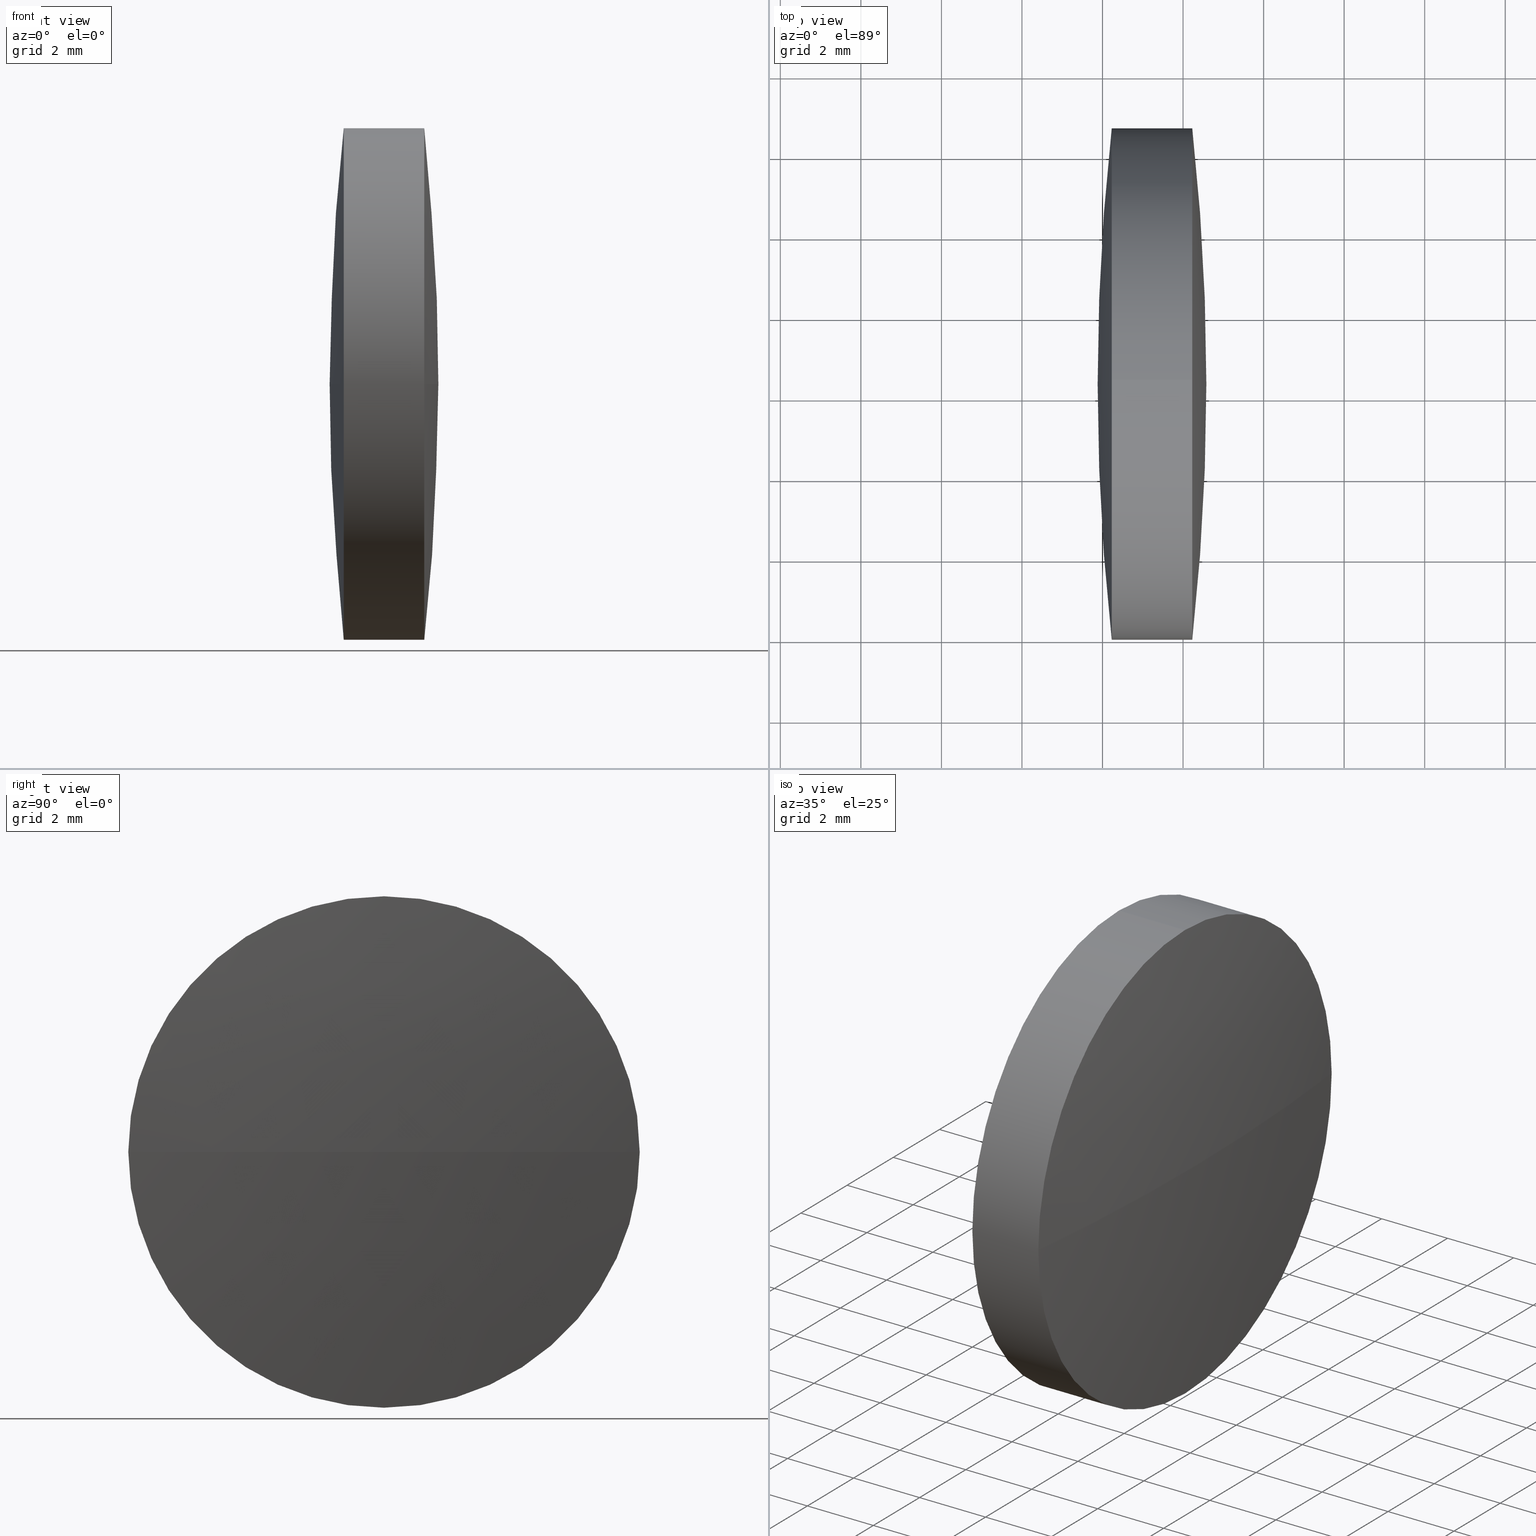
[diagram: canonical four-view strip — front | top / right | iso, engineering-drawing reading convention]
A machine part, canonical four-view strip (front | top / right | iso — engineering-drawing reading convention). The complete STEP part file that produces these views, byte-faithful:
ISO-10303-21;
HEADER;
FILE_DESCRIPTION (( 'STEP AP203' ),
    '1' );
FILE_NAME ('110153.STEP',
    '2019-07-09T01:35:42',
    ( '' ),
    ( '' ),
    'SwSTEP 2.0',
    'SolidWorks 2016',
    '' );
FILE_SCHEMA (( 'CONFIG_CONTROL_DESIGN' ));
ENDSEC;

DATA;
#1 = EDGE_CURVE ( 'NONE', #294, #84, #189, .T. ) ;
#2 = ORIENTED_EDGE ( 'NONE', *, *, #209, .F. ) ;
#3 = AXIS2_PLACEMENT_3D ( 'NONE', #95, #281, #283 ) ;
#4 = VERTEX_POINT ( 'NONE', #194 ) ;
#5 = APPLICATION_PROTOCOL_DEFINITION ( 'international standard', 'config_control_design', 1994, #273 ) ;
#6 = PERSON_AND_ORGANIZATION_ROLE ( 'design_owner' ) ;
#7 = APPROVAL_STATUS ( 'not_yet_approved' ) ;
#8 = APPROVAL_STATUS ( 'not_yet_approved' ) ;
#9 = DIRECTION ( 'NONE',  ( -1.000000000000000000, -0.0000000000000000000, -0.0000000000000000000 ) ) ;
#10 = ORIENTED_EDGE ( 'NONE', *, *, #180, .T. ) ;
#11 = CARTESIAN_POINT ( 'NONE',  ( 42.22906260161698100, 24.30805651159239000, 0.0000000000000000000 ) ) ;
#12 = CARTESIAN_POINT ( 'NONE',  ( 41.87926831590270600, 24.30805651159235800, 0.0000000000000000000 ) ) ;
#13 = SPHERICAL_SURFACE ( 'NONE', #200, 57.81234527563819400 ) ;
#14 = DIRECTION ( 'NONE',  ( -1.000000000000000000, -0.0000000000000000000, -0.0000000000000000000 ) ) ;
#15 = DIRECTION ( 'NONE',  ( -1.000000000000000000, -0.0000000000000000000, -0.0000000000000000000 ) ) ;
#16 = PERSON_AND_ORGANIZATION ( #231, #172 ) ;
#17 = DIRECTION ( 'NONE',  ( 0.0000000000000000000, 0.0000000000000000000, 1.000000000000000000 ) ) ;
#18 = PRODUCT_DEFINITION_FORMATION_WITH_SPECIFIED_SOURCE ( '�κ�', '', #67, .NOT_KNOWN. ) ;
#19 = APPLICATION_CONTEXT ( 'configuration controlled 3d designs of mechanical parts and assemblies' ) ;
#20 = DIRECTION ( 'NONE',  ( 0.0000000000000000000, -1.000000000000000000, -1.224646799147353200E-016 ) ) ;
#21 = EDGE_LOOP ( 'NONE', ( #318, #22, #279, #130 ) ) ;
#22 = ORIENTED_EDGE ( 'NONE', *, *, #209, .T. ) ;
#23 = DESIGN_CONTEXT ( 'detailed design', #273, 'design' ) ;
#24 = CIRCLE ( 'NONE', #277, 6.349999999999997900 ) ;
#25 = CARTESIAN_POINT ( 'NONE',  ( 99.69161359154090000, 24.30805651159235500, 0.0000000000000000000 ) ) ;
#26 = PERSON_AND_ORGANIZATION ( #231, #172 ) ;
#27 = AXIS2_PLACEMENT_3D ( 'NONE', #150, #92, #128 ) ;
#28 = APPROVAL_PERSON_ORGANIZATION ( #97, #292, #204 ) ;
#29 = ORIENTED_EDGE ( 'NONE', *, *, #117, .T. ) ;
#30 = CIRCLE ( 'NONE', #317, 6.349999999999997900 ) ;
#31 = LOCAL_TIME ( 9, 35, 42.00000000000000000, #320 ) ;
#32 = SHAPE_DEFINITION_REPRESENTATION ( #157, #212 ) ;
#33 = PERSON_AND_ORGANIZATION ( #231, #172 ) ;
#34 = APPROVAL ( #82, 'δָ��' ) ;
#35 = PERSON_AND_ORGANIZATION ( #231, #172 ) ;
#36 = PERSON_AND_ORGANIZATION_ROLE ( 'creator' ) ;
#37 = DATE_AND_TIME ( #190, #327 ) ;
#38 = ADVANCED_FACE ( 'NONE', ( #242 ), #89, .T. ) ;
#39 = DIRECTION ( 'NONE',  ( -1.000000000000000000, -0.0000000000000000000, -0.0000000000000000000 ) ) ;
#40 = CARTESIAN_POINT ( 'NONE',  ( 44.22913117304555200, 17.95805651159243500, 0.0000000000000000000 ) ) ;
#41 = CIRCLE ( 'NONE', #262, 57.81234527563818700 ) ;
#42 = CARTESIAN_POINT ( 'NONE',  ( 42.22906260161698100, 24.30805651159239000, 0.0000000000000000000 ) ) ;
#43 = LOCAL_TIME ( 9, 35, 42.00000000000000000, #315 ) ;
#44 = DATE_AND_TIME ( #244, #168 ) ;
#45 = CALENDAR_DATE ( 2019, 9, 7 ) ;
#46 = CARTESIAN_POINT ( 'NONE',  ( -13.23341981687683600, 24.30805651159243300, 0.0000000000000000000 ) ) ;
#47 = APPROVAL_DATE_TIME ( #75, #292 ) ;
#48 = SECURITY_CLASSIFICATION ( '', '', #61 ) ;
#49 = CALENDAR_DATE ( 2019, 9, 7 ) ;
#50 = VERTEX_POINT ( 'NONE', #321 ) ;
#51 = COORDINATED_UNIVERSAL_TIME_OFFSET ( 8, 0, .AHEAD. ) ;
#52 = COORDINATED_UNIVERSAL_TIME_OFFSET ( 8, 0, .AHEAD. ) ;
#53 = APPROVAL_DATE_TIME ( #246, #34 ) ;
#54 = SECURITY_CLASSIFICATION ( '', '', #139 ) ;
#55 = PRODUCT_RELATED_PRODUCT_CATEGORY ( 'detail', '', ( #67 ) ) ;
#56 = ORIENTED_EDGE ( 'NONE', *, *, #247, .T. ) ;
#57 = CC_DESIGN_DATE_AND_TIME_ASSIGNMENT ( #111, #144, ( #48 ) ) ;
#58 = AXIS2_PLACEMENT_3D ( 'NONE', #25, #132, #159 ) ;
#59 = PERSON_AND_ORGANIZATION_ROLE ( 'creator' ) ;
#60 = ADVANCED_FACE ( 'NONE', ( #307 ), #319, .T. ) ;
#61 = SECURITY_CLASSIFICATION_LEVEL ( 'unclassified' ) ;
#62 = DIRECTION ( 'NONE',  ( 0.0000000000000000000, 0.0000000000000000000, 1.000000000000000000 ) ) ;
#63 = PRODUCT_DEFINITION_SHAPE ( 'NONE', 'NONE',  #234 ) ;
#64 = CARTESIAN_POINT ( 'NONE',  ( 44.22913117304555200, 24.30805651159239000, 0.0000000000000000000 ) ) ;
#65 = CIRCLE ( 'NONE', #334, 6.349999999999997900 ) ;
#66 = DIRECTION ( 'NONE',  ( -0.0000000000000000000, 0.0000000000000000000, -1.000000000000000000 ) ) ;
#67 = PRODUCT ( '110153', '110153', '', ( #208 ) ) ;
#68 = DIRECTION ( 'NONE',  ( -1.000000000000000000, 0.0000000000000000000, 0.0000000000000000000 ) ) ;
#69 = CC_DESIGN_DATE_AND_TIME_ASSIGNMENT ( #338, #126, ( #234 ) ) ;
#70 = PERSON_AND_ORGANIZATION_ROLE ( 'design_owner' ) ;
#71 = CC_DESIGN_PERSON_AND_ORGANIZATION_ASSIGNMENT ( #257, #36, ( #270 ) ) ;
#72 = ORIENTED_EDGE ( 'NONE', *, *, #240, .F. ) ;
#73 = DIRECTION ( 'NONE',  ( -1.000000000000000000, -0.0000000000000000000, -0.0000000000000000000 ) ) ;
#74 = APPROVAL ( #8, 'δָ��' ) ;
#75 = DATE_AND_TIME ( #49, #302 ) ;
#76 = AXIS2_PLACEMENT_3D ( 'NONE', #64, #336, #225 ) ;
#77 = DESIGN_CONTEXT ( 'detailed design', #313, 'design' ) ;
#78 = VERTEX_POINT ( 'NONE', #222 ) ;
#79 = CC_DESIGN_PERSON_AND_ORGANIZATION_ASSIGNMENT ( #329, #59, ( #18 ) ) ;
#80 = ORIENTED_EDGE ( 'NONE', *, *, #238, .F. ) ;
#81 = APPROVAL ( #228, 'δָ��' ) ;
#82 = APPROVAL_STATUS ( 'not_yet_approved' ) ;
#83 = CARTESIAN_POINT ( 'NONE',  ( 42.22906260161698100, 30.65805651159237000, 0.0000000000000000000 ) ) ;
#84 = VERTEX_POINT ( 'NONE', #12 ) ;
#85 = PERSON_AND_ORGANIZATION_ROLE ( 'creator' ) ;
#86 = CARTESIAN_POINT ( 'NONE',  ( 44.22913117304555200, 24.30805651159239000, 0.0000000000000000000 ) ) ;
#87 = DIRECTION ( 'NONE',  ( 0.0000000000000000000, 0.0000000000000000000, 1.000000000000000000 ) ) ;
#88 = DIRECTION ( 'NONE',  ( -1.000000000000000000, -0.0000000000000000000, -0.0000000000000000000 ) ) ;
#89 = SPHERICAL_SURFACE ( 'NONE', #299, 57.81234527563668000 ) ;
#90 = CC_DESIGN_SECURITY_CLASSIFICATION ( #48, ( #202 ) ) ;
#91 = CARTESIAN_POINT ( 'NONE',  ( 44.22913117304555200, 24.30805651159239000, 0.0000000000000000000 ) ) ;
#92 = DIRECTION ( 'NONE',  ( 0.0000000000000000000, 0.0000000000000000000, 1.000000000000000000 ) ) ;
#93 = DIRECTION ( 'NONE',  ( 0.0000000000000000000, -1.224646799147353200E-016, 1.000000000000000000 ) ) ;
#94 = COORDINATED_UNIVERSAL_TIME_OFFSET ( 8, 0, .AHEAD. ) ;
#95 = CARTESIAN_POINT ( 'NONE',  ( 0.0000000000000000000, 0.0000000000000000000, 0.0000000000000000000 ) ) ;
#96 = AXIS2_PLACEMENT_3D ( 'NONE', #226, #66, #258 ) ;
#97 = PERSON_AND_ORGANIZATION ( #231, #172 ) ;
#98 = DIRECTION ( 'NONE',  ( 0.0000000000000000000, 0.0000000000000000000, 1.000000000000000000 ) ) ;
#99 = EDGE_CURVE ( 'NONE', #294, #4, #24, .T. ) ;
#100 = CALENDAR_DATE ( 2019, 9, 7 ) ;
#101 = CARTESIAN_POINT ( 'NONE',  ( 42.22906260161698100, 24.30805651159239000, 0.0000000000000000000 ) ) ;
#102 = APPROVAL_DATE_TIME ( #44, #74 ) ;
#103 = APPROVAL_PERSON_ORGANIZATION ( #33, #81, #125 ) ;
#104 =( NAMED_UNIT ( * ) PLANE_ANGLE_UNIT ( ) SI_UNIT ( $, .RADIAN. ) );
#105 = COORDINATED_UNIVERSAL_TIME_OFFSET ( 8, 0, .AHEAD. ) ;
#106 = CC_DESIGN_PERSON_AND_ORGANIZATION_ASSIGNMENT ( #324, #122, ( #234 ) ) ;
#107 = APPROVAL ( #115, 'δָ��' ) ;
#108 = ORIENTED_EDGE ( 'NONE', *, *, #151, .T. ) ;
#109 = SPHERICAL_SURFACE ( 'NONE', #134, 57.81234527563668000 ) ;
#110 = DATE_AND_TIME ( #178, #43 ) ;
#111 = DATE_AND_TIME ( #181, #298 ) ;
#112 = PRODUCT_RELATED_PRODUCT_CATEGORY ( 'detail', '', ( #285 ) ) ;
#113 = LOCAL_TIME ( 9, 35, 42.00000000000000000, #52 ) ;
#114 = COORDINATED_UNIVERSAL_TIME_OFFSET ( 8, 0, .AHEAD. ) ;
#115 = APPROVAL_STATUS ( 'not_yet_approved' ) ;
#116 = PERSON_AND_ORGANIZATION ( #231, #172 ) ;
#117 = EDGE_CURVE ( 'NONE', #50, #232, #177, .T. ) ;
#118 = APPROVAL_STATUS ( 'not_yet_approved' ) ;
#119 = VERTEX_POINT ( 'NONE', #340 ) ;
#120 = APPROVAL_PERSON_ORGANIZATION ( #335, #107, #201 ) ;
#121 = EDGE_CURVE ( 'NONE', #232, #4, #233, .T. ) ;
#122 = PERSON_AND_ORGANIZATION_ROLE ( 'creator' ) ;
#123 = DIRECTION ( 'NONE',  ( -1.000000000000000000, -0.0000000000000000000, -0.0000000000000000000 ) ) ;
#124 = CALENDAR_DATE ( 2019, 9, 7 ) ;
#125 = APPROVAL_ROLE ( '' ) ;
#126 = DATE_TIME_ROLE ( 'creation_date' ) ;
#127 = CC_DESIGN_PERSON_AND_ORGANIZATION_ASSIGNMENT ( #35, #143, ( #54 ) ) ;
#128 = DIRECTION ( 'NONE',  ( 1.000000000000000000, 0.0000000000000000000, 0.0000000000000000000 ) ) ;
#129 = CC_DESIGN_APPROVAL ( #81, ( #202 ) ) ;
#130 = ORIENTED_EDGE ( 'NONE', *, *, #117, .F. ) ;
#131 = DIRECTION ( 'NONE',  ( -1.000000000000000000, -0.0000000000000000000, -0.0000000000000000000 ) ) ;
#132 = DIRECTION ( 'NONE',  ( -0.0000000000000000000, 0.0000000000000000000, 1.000000000000000000 ) ) ;
#133 = CIRCLE ( 'NONE', #196, 6.349999999999997900 ) ;
#134 = AXIS2_PLACEMENT_3D ( 'NONE', #206, #256, #147 ) ;
#135 = EDGE_LOOP ( 'NONE', ( #2, #345, #263, #166 ) ) ;
#136 = CIRCLE ( 'NONE', #185, 6.349999999999997900 ) ;
#137 = VERTEX_POINT ( 'NONE', #207 ) ;
#138 = CC_DESIGN_PERSON_AND_ORGANIZATION_ASSIGNMENT ( #116, #70, ( #67 ) ) ;
#139 = SECURITY_CLASSIFICATION_LEVEL ( 'unclassified' ) ;
#140 = ORIENTED_EDGE ( 'NONE', *, *, #121, .F. ) ;
#141 = CC_DESIGN_SECURITY_CLASSIFICATION ( #54, ( #18 ) ) ;
#142 = ADVANCED_FACE ( 'NONE', ( #224 ), #254, .T. ) ;
#143 = PERSON_AND_ORGANIZATION_ROLE ( 'classification_officer' ) ;
#144 = DATE_TIME_ROLE ( 'classification_date' ) ;
#145 = DIRECTION ( 'NONE',  ( -1.000000000000000000, -0.0000000000000000000, -0.0000000000000000000 ) ) ;
#146 = ORIENTED_EDGE ( 'NONE', *, *, #121, .T. ) ;
#147 = DIRECTION ( 'NONE',  ( 0.0000000000000000000, -1.000000000000000000, 0.0000000000000000000 ) ) ;
#148 = CIRCLE ( 'NONE', #162, 57.81234527563668000 ) ;
#149 = CARTESIAN_POINT ( 'NONE',  ( 39.65270067541857900, 24.30805651159239000, -6.349999999999997900 ) ) ;
#150 = CARTESIAN_POINT ( 'NONE',  ( 0.0000000000000000000, 0.0000000000000000000, 0.0000000000000000000 ) ) ;
#151 = EDGE_CURVE ( 'NONE', #78, #137, #30, .T. ) ;
#152 = CARTESIAN_POINT ( 'NONE',  ( -13.23341981687683600, 24.30805651159243300, 0.0000000000000000000 ) ) ;
#153 =( NAMED_UNIT ( * ) SI_UNIT ( $, .STERADIAN. ) SOLID_ANGLE_UNIT ( ) );
#154 = EDGE_LOOP ( 'NONE', ( #289, #108, #10, #274 ) ) ;
#155 = EDGE_CURVE ( 'NONE', #215, #50, #160, .T. ) ;
#156 = ORIENTED_EDGE ( 'NONE', *, *, #1, .F. ) ;
#157 = PRODUCT_DEFINITION_SHAPE ( 'NONE', 'NONE',  #270 ) ;
#158 = EDGE_CURVE ( 'NONE', #78, #84, #41, .T. ) ;
#159 = DIRECTION ( 'NONE',  ( 1.000000000000000000, 0.0000000000000000000, 0.0000000000000000000 ) ) ;
#160 = CIRCLE ( 'NONE', #76, 6.349999999999997900 ) ;
#161 = APPROVAL_PERSON_ORGANIZATION ( #16, #74, #175 ) ;
#162 = AXIS2_PLACEMENT_3D ( 'NONE', #152, #93, #20 ) ;
#163 = DIRECTION ( 'NONE',  ( 0.0000000000000000000, -1.000000000000000000, 0.0000000000000000000 ) ) ;
#164 = ORIENTED_EDGE ( 'NONE', *, *, #238, .T. ) ;
#165 = CC_DESIGN_APPROVAL ( #107, ( #270 ) ) ;
#166 = ORIENTED_EDGE ( 'NONE', *, *, #284, .F. ) ;
#167 = VECTOR ( 'NONE', #14, 1000.000000000000000 ) ;
#168 = LOCAL_TIME ( 9, 35, 42.00000000000000000, #297 ) ;
#169 = PERSON_AND_ORGANIZATION ( #231, #172 ) ;
#170 = ADVANCED_FACE ( 'NONE', ( #296 ), #109, .T. ) ;
#171 = AXIS2_PLACEMENT_3D ( 'NONE', #11, #311, #17 ) ;
#172 = ORGANIZATION ( 'δָ��', 'δָ��', '' ) ;
#173 = APPROVAL_ROLE ( '' ) ;
#174 = DIRECTION ( 'NONE',  ( -0.0000000000000000000, 0.0000000000000000000, -1.000000000000000000 ) ) ;
#175 = APPROVAL_ROLE ( '' ) ;
#176 = DIRECTION ( 'NONE',  ( 0.0000000000000000000, 1.000000000000000000, 1.224646799147353500E-016 ) ) ;
#177 = CIRCLE ( 'NONE', #295, 6.349999999999997900 ) ;
#178 = CALENDAR_DATE ( 2019, 9, 7 ) ;
#179 = DIRECTION ( 'NONE',  ( 0.0000000000000000000, 1.224646799147353200E-016, -1.000000000000000000 ) ) ;
#180 = EDGE_CURVE ( 'NONE', #137, #294, #286, .T. ) ;
#181 = CALENDAR_DATE ( 2019, 9, 7 ) ;
#182 = DIRECTION ( 'NONE',  ( 0.0000000000000000000, 0.0000000000000000000, 1.000000000000000000 ) ) ;
#183 = CARTESIAN_POINT ( 'NONE',  ( 39.65270067541857900, 24.30805651159239000, 6.349999999999997900 ) ) ;
#184 = CALENDAR_DATE ( 2019, 9, 7 ) ;
#185 = AXIS2_PLACEMENT_3D ( 'NONE', #205, #39, #282 ) ;
#186 = APPROVAL_PERSON_ORGANIZATION ( #265, #34, #173 ) ;
#187 = MANIFOLD_SOLID_BREP ( '��ת1', #213 ) ;
#188 = CC_DESIGN_PERSON_AND_ORGANIZATION_ASSIGNMENT ( #245, #304, ( #202 ) ) ;
#189 = CIRCLE ( 'NONE', #58, 57.81234527563820800 ) ;
#190 = CALENDAR_DATE ( 2019, 9, 7 ) ;
#191 = COORDINATED_UNIVERSAL_TIME_OFFSET ( 8, 0, .AHEAD. ) ;
#192 = DIRECTION ( 'NONE',  ( -1.000000000000000000, -0.0000000000000000000, -0.0000000000000000000 ) ) ;
#193 = CALENDAR_DATE ( 2019, 9, 7 ) ;
#194 = CARTESIAN_POINT ( 'NONE',  ( 42.22906260161698100, 24.30805651159239000, -6.349999999999997900 ) ) ;
#195 = COORDINATED_UNIVERSAL_TIME_OFFSET ( 8, 0, .AHEAD. ) ;
#196 = AXIS2_PLACEMENT_3D ( 'NONE', #86, #145, #278 ) ;
#197 = ORIENTED_EDGE ( 'NONE', *, *, #240, .T. ) ;
#198 = DATE_AND_TIME ( #100, #31 ) ;
#199 = LOCAL_TIME ( 9, 35, 42.00000000000000000, #105 ) ;
#200 = AXIS2_PLACEMENT_3D ( 'NONE', #221, #174, #253 ) ;
#201 = APPROVAL_ROLE ( '' ) ;
#202 = PRODUCT_DEFINITION_FORMATION_WITH_SPECIFIED_SOURCE ( '�κ�', '', #285, .NOT_KNOWN. ) ;
#203 = EDGE_LOOP ( 'NONE', ( #140, #56, #217, #164, #333, #72 ) ) ;
#204 = APPROVAL_ROLE ( '' ) ;
#205 = CARTESIAN_POINT ( 'NONE',  ( 44.22913117304555200, 24.30805651159239000, 0.0000000000000000000 ) ) ;
#206 = CARTESIAN_POINT ( 'NONE',  ( -13.23341981687683600, 24.30805651159243300, 0.0000000000000000000 ) ) ;
#207 = CARTESIAN_POINT ( 'NONE',  ( 42.22906260161698100, 24.30805651159239000, 6.349999999999997900 ) ) ;
#208 = MECHANICAL_CONTEXT ( 'NONE', #19, 'mechanical' ) ;
#209 = EDGE_CURVE ( 'NONE', #119, #326, #266, .T. ) ;
#210 = FACE_OUTER_BOUND ( 'NONE', #230, .T. ) ;
#211 = AXIS2_PLACEMENT_3D ( 'NONE', #251, #9, #62 ) ;
#212 = ADVANCED_BREP_SHAPE_REPRESENTATION ( '110153', ( #187, #27 ), #229 ) ;
#213 = CLOSED_SHELL ( 'NONE', ( #275, #170, #250, #142, #38, #60 ) ) ;
#214 = CC_DESIGN_DATE_AND_TIME_ASSIGNMENT ( #328, #218, ( #270 ) ) ;
#215 = VERTEX_POINT ( 'NONE', #227 ) ;
#216 = CYLINDRICAL_SURFACE ( 'NONE', #211, 6.349999999999997900 ) ;
#217 = ORIENTED_EDGE ( 'NONE', *, *, #284, .T. ) ;
#218 = DATE_TIME_ROLE ( 'creation_date' ) ;
#219 = EDGE_CURVE ( 'NONE', #119, #50, #148, .T. ) ;
#220 = PERSON_AND_ORGANIZATION_ROLE ( 'classification_officer' ) ;
#221 = CARTESIAN_POINT ( 'NONE',  ( 99.69161359154090000, 24.30805651159235500, 0.0000000000000000000 ) ) ;
#222 = CARTESIAN_POINT ( 'NONE',  ( 42.22906260161698100, 17.95805651159237500, -7.776507174585665500E-016 ) ) ;
#223 = CARTESIAN_POINT ( 'NONE',  ( 99.69161359154090000, 24.30805651159235500, 0.0000000000000000000 ) ) ;
#224 = FACE_OUTER_BOUND ( 'NONE', #154, .T. ) ;
#225 = DIRECTION ( 'NONE',  ( 0.0000000000000000000, 0.0000000000000000000, 1.000000000000000000 ) ) ;
#226 = CARTESIAN_POINT ( 'NONE',  ( 99.69161359154090000, 24.30805651159235500, 0.0000000000000000000 ) ) ;
#227 = CARTESIAN_POINT ( 'NONE',  ( 44.22913117304555200, 24.30805651159239000, 6.349999999999997900 ) ) ;
#228 = APPROVAL_STATUS ( 'not_yet_approved' ) ;
#229 =( GEOMETRIC_REPRESENTATION_CONTEXT ( 3 ) GLOBAL_UNCERTAINTY_ASSIGNED_CONTEXT ( ( #236 ) ) GLOBAL_UNIT_ASSIGNED_CONTEXT ( ( #337, #104, #153 ) ) REPRESENTATION_CONTEXT ( 'NONE', 'WORKASPACE' ) );
#230 = EDGE_LOOP ( 'NONE', ( #29, #146, #269, #241, #80, #343 ) ) ;
#231 = PERSON ( 'δָ��', 'δָ��', 'δָ��', ('δָ��'), ('δָ��'), ('δָ��') ) ;
#232 = VERTEX_POINT ( 'NONE', #341 ) ;
#233 = LINE ( 'NONE', #149, #167 ) ;
#234 = PRODUCT_DEFINITION ( 'δ֪', '', #18, #77 ) ;
#235 = LOCAL_TIME ( 9, 35, 42.00000000000000000, #191 ) ;
#236 = UNCERTAINTY_MEASURE_WITH_UNIT (LENGTH_MEASURE( 1.000000000000000100E-005 ), #337, 'distance_accuracy_value', 'NONE');
#237 = LOCAL_TIME ( 9, 35, 42.00000000000000000, #114 ) ;
#238 = EDGE_CURVE ( 'NONE', #215, #137, #271, .T. ) ;
#239 = APPROVAL_DATE_TIME ( #37, #107 ) ;
#240 = EDGE_CURVE ( 'NONE', #4, #78, #65, .T. ) ;
#241 = ORIENTED_EDGE ( 'NONE', *, *, #180, .F. ) ;
#242 = FACE_OUTER_BOUND ( 'NONE', #21, .T. ) ;
#243 = PERSON_AND_ORGANIZATION ( #231, #172 ) ;
#244 = CALENDAR_DATE ( 2019, 9, 7 ) ;
#245 = PERSON_AND_ORGANIZATION ( #231, #172 ) ;
#246 = DATE_AND_TIME ( #124, #199 ) ;
#247 = EDGE_CURVE ( 'NONE', #232, #326, #133, .T. ) ;
#248 = DATE_TIME_ROLE ( 'classification_date' ) ;
#249 = CC_DESIGN_PERSON_AND_ORGANIZATION_ASSIGNMENT ( #243, #6, ( #285 ) ) ;
#250 = ADVANCED_FACE ( 'NONE', ( #290 ), #13, .T. ) ;
#251 = CARTESIAN_POINT ( 'NONE',  ( 39.65270067541857900, 24.30805651159239000, 0.0000000000000000000 ) ) ;
#252 = ORIENTED_EDGE ( 'NONE', *, *, #99, .T. ) ;
#253 = DIRECTION ( 'NONE',  ( 0.0000000000000000000, 1.000000000000000000, 0.0000000000000000000 ) ) ;
#254 = SPHERICAL_SURFACE ( 'NONE', #96, 57.81234527563819400 ) ;
#255 = APPROVAL_PERSON_ORGANIZATION ( #308, #342, #300 ) ;
#256 = DIRECTION ( 'NONE',  ( 0.0000000000000000000, 0.0000000000000000000, 1.000000000000000000 ) ) ;
#257 = PERSON_AND_ORGANIZATION ( #231, #172 ) ;
#258 = DIRECTION ( 'NONE',  ( 0.0000000000000000000, 1.000000000000000000, 0.0000000000000000000 ) ) ;
#259 = CC_DESIGN_APPROVAL ( #74, ( #48 ) ) ;
#260 = CC_DESIGN_APPROVAL ( #292, ( #234 ) ) ;
#261 = PERSON_AND_ORGANIZATION ( #231, #172 ) ;
#262 = AXIS2_PLACEMENT_3D ( 'NONE', #223, #179, #176 ) ;
#263 = ORIENTED_EDGE ( 'NONE', *, *, #155, .F. ) ;
#264 = APPROVAL_DATE_TIME ( #198, #342 ) ;
#265 = PERSON_AND_ORGANIZATION ( #231, #172 ) ;
#266 = CIRCLE ( 'NONE', #325, 57.81234527563668000 ) ;
#267 = DIRECTION ( 'NONE',  ( 0.0000000000000000000, 0.0000000000000000000, 1.000000000000000000 ) ) ;
#268 = CC_DESIGN_PERSON_AND_ORGANIZATION_ASSIGNMENT ( #169, #220, ( #48 ) ) ;
#269 = ORIENTED_EDGE ( 'NONE', *, *, #99, .F. ) ;
#270 = PRODUCT_DEFINITION ( 'δ֪', '', #202, #23 ) ;
#271 = LINE ( 'NONE', #183, #339 ) ;
#272 = CC_DESIGN_PERSON_AND_ORGANIZATION_ASSIGNMENT ( #261, #276, ( #18 ) ) ;
#273 = APPLICATION_CONTEXT ( 'configuration controlled 3d designs of mechanical parts and assemblies' ) ;
#274 = ORIENTED_EDGE ( 'NONE', *, *, #1, .T. ) ;
#275 = ADVANCED_FACE ( 'NONE', ( #210 ), #216, .T. ) ;
#276 = PERSON_AND_ORGANIZATION_ROLE ( 'design_supplier' ) ;
#277 = AXIS2_PLACEMENT_3D ( 'NONE', #309, #73, #98 ) ;
#278 = DIRECTION ( 'NONE',  ( 0.0000000000000000000, 0.0000000000000000000, 1.000000000000000000 ) ) ;
#279 = ORIENTED_EDGE ( 'NONE', *, *, #247, .F. ) ;
#280 = DIRECTION ( 'NONE',  ( 0.0000000000000000000, 0.0000000000000000000, 1.000000000000000000 ) ) ;
#281 = DIRECTION ( 'NONE',  ( 0.0000000000000000000, 0.0000000000000000000, 1.000000000000000000 ) ) ;
#282 = DIRECTION ( 'NONE',  ( 0.0000000000000000000, 0.0000000000000000000, 1.000000000000000000 ) ) ;
#283 = DIRECTION ( 'NONE',  ( 1.000000000000000000, 0.0000000000000000000, 0.0000000000000000000 ) ) ;
#284 = EDGE_CURVE ( 'NONE', #326, #215, #136, .T. ) ;
#285 = PRODUCT ( '110153', '110153', '', ( #332 ) ) ;
#286 = CIRCLE ( 'NONE', #171, 6.349999999999997900 ) ;
#287 = ORIENTED_EDGE ( 'NONE', *, *, #158, .T. ) ;
#288 = CC_DESIGN_APPROVAL ( #342, ( #54 ) ) ;
#289 = ORIENTED_EDGE ( 'NONE', *, *, #158, .F. ) ;
#290 = FACE_OUTER_BOUND ( 'NONE', #305, .T. ) ;
#291 = CARTESIAN_POINT ( 'NONE',  ( -13.23341981687683600, 24.30805651159243300, 0.0000000000000000000 ) ) ;
#292 = APPROVAL ( #7, 'δָ��' ) ;
#293 = CARTESIAN_POINT ( 'NONE',  ( 39.65270067541857900, 24.30805651159239000, 0.0000000000000000000 ) ) ;
#294 = VERTEX_POINT ( 'NONE', #83 ) ;
#295 = AXIS2_PLACEMENT_3D ( 'NONE', #91, #123, #182 ) ;
#296 = FACE_OUTER_BOUND ( 'NONE', #135, .T. ) ;
#297 = COORDINATED_UNIVERSAL_TIME_OFFSET ( 8, 0, .AHEAD. ) ;
#298 = LOCAL_TIME ( 9, 35, 42.00000000000000000, #94 ) ;
#299 = AXIS2_PLACEMENT_3D ( 'NONE', #291, #322, #163 ) ;
#300 = APPROVAL_ROLE ( '' ) ;
#301 = APPLICATION_CONTEXT ( 'configuration controlled 3d designs of mechanical parts and assemblies' ) ;
#302 = LOCAL_TIME ( 9, 35, 42.00000000000000000, #195 ) ;
#303 = CC_DESIGN_PERSON_AND_ORGANIZATION_ASSIGNMENT ( #26, #85, ( #202 ) ) ;
#304 = PERSON_AND_ORGANIZATION_ROLE ( 'design_supplier' ) ;
#305 = EDGE_LOOP ( 'NONE', ( #252, #197, #287, #156 ) ) ;
#306 = APPLICATION_PROTOCOL_DEFINITION ( 'international standard', 'config_control_design', 1994, #313 ) ;
#307 = FACE_OUTER_BOUND ( 'NONE', #203, .T. ) ;
#308 = PERSON_AND_ORGANIZATION ( #231, #172 ) ;
#309 = CARTESIAN_POINT ( 'NONE',  ( 42.22906260161698100, 24.30805651159239000, 0.0000000000000000000 ) ) ;
#310 = DIRECTION ( 'NONE',  ( 0.0000000000000000000, 0.0000000000000000000, -1.000000000000000000 ) ) ;
#311 = DIRECTION ( 'NONE',  ( -1.000000000000000000, -0.0000000000000000000, -0.0000000000000000000 ) ) ;
#312 = CC_DESIGN_APPROVAL ( #34, ( #18 ) ) ;
#313 = APPLICATION_CONTEXT ( 'configuration controlled 3d designs of mechanical parts and assemblies' ) ;
#314 = APPROVAL_DATE_TIME ( #323, #81 ) ;
#315 = COORDINATED_UNIVERSAL_TIME_OFFSET ( 8, 0, .AHEAD. ) ;
#316 = APPLICATION_PROTOCOL_DEFINITION ( 'international standard', 'config_control_design', 1994, #19 ) ;
#317 = AXIS2_PLACEMENT_3D ( 'NONE', #101, #131, #87 ) ;
#318 = ORIENTED_EDGE ( 'NONE', *, *, #219, .F. ) ;
#319 = CYLINDRICAL_SURFACE ( 'NONE', #344, 6.349999999999997900 ) ;
#320 = COORDINATED_UNIVERSAL_TIME_OFFSET ( 8, 0, .AHEAD. ) ;
#321 = CARTESIAN_POINT ( 'NONE',  ( 44.22913117304555200, 30.65805651159238800, 7.776507174585642900E-016 ) ) ;
#322 = DIRECTION ( 'NONE',  ( 0.0000000000000000000, 0.0000000000000000000, 1.000000000000000000 ) ) ;
#323 = DATE_AND_TIME ( #184, #235 ) ;
#324 = PERSON_AND_ORGANIZATION ( #231, #172 ) ;
#325 = AXIS2_PLACEMENT_3D ( 'NONE', #46, #310, #68 ) ;
#326 = VERTEX_POINT ( 'NONE', #40 ) ;
#327 = LOCAL_TIME ( 9, 35, 42.00000000000000000, #51 ) ;
#328 = DATE_AND_TIME ( #45, #113 ) ;
#329 = PERSON_AND_ORGANIZATION ( #231, #172 ) ;
#330 = CC_DESIGN_DATE_AND_TIME_ASSIGNMENT ( #110, #248, ( #54 ) ) ;
#331 = APPLICATION_PROTOCOL_DEFINITION ( 'international standard', 'config_control_design', 1994, #301 ) ;
#332 = MECHANICAL_CONTEXT ( 'NONE', #301, 'mechanical' ) ;
#333 = ORIENTED_EDGE ( 'NONE', *, *, #151, .F. ) ;
#334 = AXIS2_PLACEMENT_3D ( 'NONE', #42, #88, #280 ) ;
#335 = PERSON_AND_ORGANIZATION ( #231, #172 ) ;
#336 = DIRECTION ( 'NONE',  ( -1.000000000000000000, -0.0000000000000000000, -0.0000000000000000000 ) ) ;
#337 =( LENGTH_UNIT ( ) NAMED_UNIT ( * ) SI_UNIT ( .MILLI., .METRE. ) );
#338 = DATE_AND_TIME ( #193, #237 ) ;
#339 = VECTOR ( 'NONE', #15, 1000.000000000000000 ) ;
#340 = CARTESIAN_POINT ( 'NONE',  ( 44.57892545875984100, 24.30805651159242900, 0.0000000000000000000 ) ) ;
#341 = CARTESIAN_POINT ( 'NONE',  ( 44.22913117304555200, 24.30805651159239000, -6.349999999999997900 ) ) ;
#342 = APPROVAL ( #118, 'δָ��' ) ;
#343 = ORIENTED_EDGE ( 'NONE', *, *, #155, .T. ) ;
#344 = AXIS2_PLACEMENT_3D ( 'NONE', #293, #192, #267 ) ;
#345 = ORIENTED_EDGE ( 'NONE', *, *, #219, .T. ) ;
ENDSEC;
END-ISO-10303-21;
